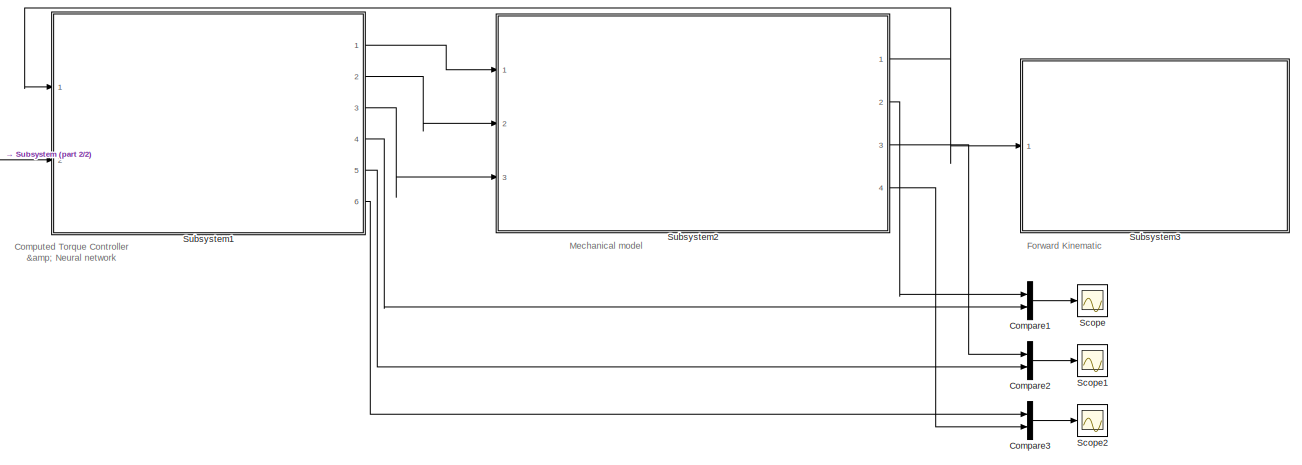
[diagram: root canvas - part 1/2, center side, full height]
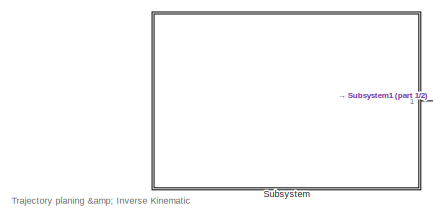
[diagram: root canvas - part 2/2, middle left region]
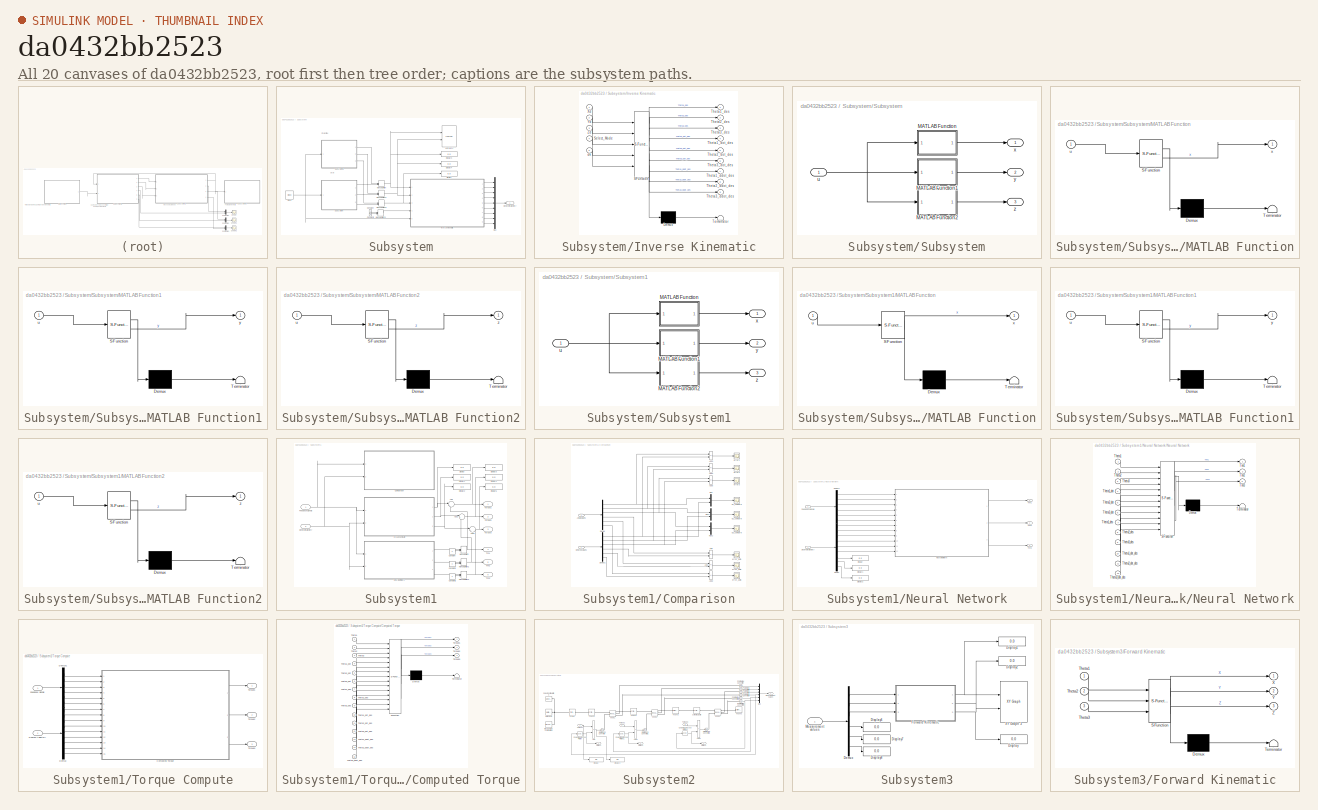
[diagram: thumbnail index - all 20 canvases of the model, root first then tree order]
MODEL slx_da0432bb2523
KIND model
CONFIG AbsTol = 1e-3
CONFIG EnableMultiTasking = on
CONFIG FixedStep = auto
CONFIG MaxStep = auto
CONFIG MinStep = auto
CONFIG RelTol = 1e-3
CONFIG SampleTimeConstraint = Unconstrained
CONFIG SolverName = VariableStepAuto
CONFIG StartTime = 0.0
CONFIG StopTime = 60
BLOCK [Mux] Compare1
  DisplayOption = bar
  Inputs = 2
  Ports = [2, 1]
BLOCK [Mux] Compare2
  DisplayOption = bar
  Inputs = 2
  Ports = [2, 1]
BLOCK [Mux] Compare3
  DisplayOption = bar
  Inputs = 2
  Ports = [2, 1]
BLOCK [Scope] Scope
  Floating = off
  NumInputPorts = 1
  Ports = [1]
  ScopeSpecificationString = Simulink.scopes.TimeScopeBlockCfg('CurrentConfiguration', extmgr.ConfigurationSet(extmgr.Configuration('Core','General UI',true),extmgr.Configuration('Core','Source UI',true),extmgr.Configuration('Sources','WiredSimulink',true,'DataLoggingVariableName','ScopeData1'),extmgr.Configuration('Visuals','Time Domain',true,'SerializedDisplays',{struct('MinYLimReal','-3750000.00000','MaxYLimReal','3750000....<+1867ch>
BLOCK [Scope] Scope1
  Floating = off
  NumInputPorts = 1
  Ports = [1]
  ScopeSpecificationString = Simulink.scopes.TimeScopeBlockCfg('CurrentConfiguration', extmgr.ConfigurationSet(extmgr.Configuration('Core','General UI',true),extmgr.Configuration('Core','Source UI',true),extmgr.Configuration('Sources','WiredSimulink',true,'DataLoggingVariableName','ScopeData2'),extmgr.Configuration('Visuals','Time Domain',true,'SerializedDisplays',{struct('MinYLimReal','-3750000.00000','MaxYLimReal','3750000....<+1505ch>
BLOCK [Scope] Scope2
  Floating = off
  NumInputPorts = 1
  Ports = [1]
  ScopeSpecificationString = Simulink.scopes.TimeScopeBlockCfg('CurrentConfiguration', extmgr.ConfigurationSet(extmgr.Configuration('Core','General UI',true),extmgr.Configuration('Core','Source UI',true),extmgr.Configuration('Sources','WiredSimulink',true,'DataLoggingVariableName','ScopeData3'),extmgr.Configuration('Visuals','Time Domain',true,'SerializedDisplays',{struct('MinYLimReal','-3750000.00000','MaxYLimReal','3750000....<+1505ch>
BLOCK [SubSystem] Subsystem
  Ports = [0, 1]
  RequestExecContextInheritance = off
BLOCK [Clock] Subsystem/Clock
BLOCK [Constant] Subsystem/Constant
BLOCK [Constant] Subsystem/Constant1
  Value = 2
BLOCK [Outport] Subsystem/Desired trajectory 
BLOCK [Display] Subsystem/Display
  Decimation = 1
  Ports = [1]
BLOCK [Display] Subsystem/Display3
  Decimation = 1
  Ports = [1]
BLOCK [Display] Subsystem/Display4
  Decimation = 1
  Ports = [1]
BLOCK [SubSystem] Subsystem/Inverse Kinematic
  ErrorFcn = Stateflow.Translate.translate
  PermitHierarchicalResolution = ExplicitOnly
  Ports = [5, 9]
  RequestExecContextInheritance = off
  SFBlockType = MATLAB Function
  TreatAsAtomicUnit = on
BLOCK [Demux] Subsystem/Inverse Kinematic/ Demux 
  Outputs = 1
  Ports = [1, 1]
BLOCK [S-Function] Subsystem/Inverse Kinematic/ SFunction 
  EnableBusSupport = on
  FunctionName = sf_sfun
  PortCounts = [5 10]
  Ports = [5, 10]
  SFcnIsStateOwnerBlock = off
  SFunctionDeploymentMode = off
  Tag = Stateflow S-Function 2
BLOCK [Terminator] Subsystem/Inverse Kinematic/ Terminator 
BLOCK [Inport] Subsystem/Inverse Kinematic/Select_Mode
  Port = 4
BLOCK [Outport] Subsystem/Inverse Kinematic/Theta1_ddot_des
  Port = 7
BLOCK [Outport] Subsystem/Inverse Kinematic/Theta1_des
BLOCK [Outport] Subsystem/Inverse Kinematic/Theta1_dot_des
  Port = 4
BLOCK [Outport] Subsystem/Inverse Kinematic/Theta2_ddot_des
  Port = 8
BLOCK [Outport] Subsystem/Inverse Kinematic/Theta2_des
  Port = 2
BLOCK [Outport] Subsystem/Inverse Kinematic/Theta2_dot_des
  Port = 5
BLOCK [Outport] Subsystem/Inverse Kinematic/Theta3_ddot_des
  Port = 9
BLOCK [Outport] Subsystem/Inverse Kinematic/Theta3_des
  Port = 3
BLOCK [Outport] Subsystem/Inverse Kinematic/Theta3_dot_des
  Port = 6
BLOCK [Inport] Subsystem/Inverse Kinematic/Xd
BLOCK [Inport] Subsystem/Inverse Kinematic/Yd
  Port = 2
BLOCK [Inport] Subsystem/Inverse Kinematic/Zd
  Port = 3
BLOCK [Inport] Subsystem/Inverse Kinematic/clk
  Port = 5
BLOCK [ManualSwitch] Subsystem/Manual Switch
  CurrentSetting = 0
BLOCK [ManualSwitch] Subsystem/Manual Switch1
  CurrentSetting = 0
BLOCK [ManualSwitch] Subsystem/Manual Switch2
  CurrentSetting = 0
BLOCK [ManualSwitch] Subsystem/Manual Switch3
  CurrentSetting = 0
BLOCK [Mux] Subsystem/Mux
  DisplayOption = bar
  Inputs = 9
  Ports = [9, 1]
BLOCK [SubSystem] Subsystem/Subsystem
  Ports = [1, 3]
  RequestExecContextInheritance = off
BLOCK [SubSystem] Subsystem/Subsystem/MATLAB Function
  ErrorFcn = Stateflow.Translate.translate
  PermitHierarchicalResolution = ExplicitOnly
  Ports = [1, 1]
  RequestExecContextInheritance = off
  SFBlockType = MATLAB Function
  TreatAsAtomicUnit = on
BLOCK [Demux] Subsystem/Subsystem/MATLAB Function/ Demux 
  Outputs = 1
  Ports = [1, 1]
BLOCK [S-Function] Subsystem/Subsystem/MATLAB Function/ SFunction 
  EnableBusSupport = on
  FunctionName = sf_sfun
  PortCounts = [1 2]
  Ports = [1, 2]
  SFcnIsStateOwnerBlock = off
  SFunctionDeploymentMode = off
  Tag = Stateflow S-Function 3
BLOCK [Terminator] Subsystem/Subsystem/MATLAB Function/ Terminator 
BLOCK [Inport] Subsystem/Subsystem/MATLAB Function/u
BLOCK [Outport] Subsystem/Subsystem/MATLAB Function/x
BLOCK [SubSystem] Subsystem/Subsystem/MATLAB Function1
  ErrorFcn = Stateflow.Translate.translate
  PermitHierarchicalResolution = ExplicitOnly
  Ports = [1, 1]
  RequestExecContextInheritance = off
  SFBlockType = MATLAB Function
  TreatAsAtomicUnit = on
BLOCK [Demux] Subsystem/Subsystem/MATLAB Function1/ Demux 
  Outputs = 1
  Ports = [1, 1]
BLOCK [S-Function] Subsystem/Subsystem/MATLAB Function1/ SFunction 
  EnableBusSupport = on
  FunctionName = sf_sfun
  PortCounts = [1 2]
  Ports = [1, 2]
  SFcnIsStateOwnerBlock = off
  SFunctionDeploymentMode = off
  Tag = Stateflow S-Function 4
BLOCK [Terminator] Subsystem/Subsystem/MATLAB Function1/ Terminator 
BLOCK [Inport] Subsystem/Subsystem/MATLAB Function1/u
BLOCK [Outport] Subsystem/Subsystem/MATLAB Function1/y
BLOCK [SubSystem] Subsystem/Subsystem/MATLAB Function2
  ErrorFcn = Stateflow.Translate.translate
  PermitHierarchicalResolution = ExplicitOnly
  Ports = [1, 1]
  RequestExecContextInheritance = off
  SFBlockType = MATLAB Function
  TreatAsAtomicUnit = on
BLOCK [Demux] Subsystem/Subsystem/MATLAB Function2/ Demux 
  Outputs = 1
  Ports = [1, 1]
BLOCK [S-Function] Subsystem/Subsystem/MATLAB Function2/ SFunction 
  EnableBusSupport = on
  FunctionName = sf_sfun
  PortCounts = [1 2]
  Ports = [1, 2]
  SFcnIsStateOwnerBlock = off
  SFunctionDeploymentMode = off
  Tag = Stateflow S-Function 6
BLOCK [Terminator] Subsystem/Subsystem/MATLAB Function2/ Terminator 
BLOCK [Inport] Subsystem/Subsystem/MATLAB Function2/u
BLOCK [Outport] Subsystem/Subsystem/MATLAB Function2/z
BLOCK [Inport] Subsystem/Subsystem/u
BLOCK [Outport] Subsystem/Subsystem/x
BLOCK [Outport] Subsystem/Subsystem/y
  Port = 2
BLOCK [Outport] Subsystem/Subsystem/z
  Port = 3
BLOCK [SubSystem] Subsystem/Subsystem1
  Ports = [1, 3]
  RequestExecContextInheritance = off
BLOCK [SubSystem] Subsystem/Subsystem1/MATLAB Function
  ErrorFcn = Stateflow.Translate.translate
  PermitHierarchicalResolution = ExplicitOnly
  Ports = [1, 1]
  RequestExecContextInheritance = off
  SFBlockType = MATLAB Function
  TreatAsAtomicUnit = on
BLOCK [Demux] Subsystem/Subsystem1/MATLAB Function/ Demux 
  Outputs = 1
  Ports = [1, 1]
BLOCK [S-Function] Subsystem/Subsystem1/MATLAB Function/ SFunction 
  EnableBusSupport = on
  FunctionName = sf_sfun
  PortCounts = [1 2]
  Ports = [1, 2]
  SFcnIsStateOwnerBlock = off
  SFunctionDeploymentMode = off
  Tag = Stateflow S-Function 8
BLOCK [Terminator] Subsystem/Subsystem1/MATLAB Function/ Terminator 
BLOCK [Inport] Subsystem/Subsystem1/MATLAB Function/u
BLOCK [Outport] Subsystem/Subsystem1/MATLAB Function/x
BLOCK [SubSystem] Subsystem/Subsystem1/MATLAB Function1
  ErrorFcn = Stateflow.Translate.translate
  PermitHierarchicalResolution = ExplicitOnly
  Ports = [1, 1]
  RequestExecContextInheritance = off
  SFBlockType = MATLAB Function
  TreatAsAtomicUnit = on
BLOCK [Demux] Subsystem/Subsystem1/MATLAB Function1/ Demux 
  Outputs = 1
  Ports = [1, 1]
BLOCK [S-Function] Subsystem/Subsystem1/MATLAB Function1/ SFunction 
  EnableBusSupport = on
  FunctionName = sf_sfun
  PortCounts = [1 2]
  Ports = [1, 2]
  SFcnIsStateOwnerBlock = off
  SFunctionDeploymentMode = off
  Tag = Stateflow S-Function 9
BLOCK [Terminator] Subsystem/Subsystem1/MATLAB Function1/ Terminator 
BLOCK [Inport] Subsystem/Subsystem1/MATLAB Function1/u
BLOCK [Outport] Subsystem/Subsystem1/MATLAB Function1/y
BLOCK [SubSystem] Subsystem/Subsystem1/MATLAB Function2
  ErrorFcn = Stateflow.Translate.translate
  PermitHierarchicalResolution = ExplicitOnly
  Ports = [1, 1]
  RequestExecContextInheritance = off
  SFBlockType = MATLAB Function
  TreatAsAtomicUnit = on
BLOCK [Demux] Subsystem/Subsystem1/MATLAB Function2/ Demux 
  Outputs = 1
  Ports = [1, 1]
BLOCK [S-Function] Subsystem/Subsystem1/MATLAB Function2/ SFunction 
  EnableBusSupport = on
  FunctionName = sf_sfun
  PortCounts = [1 2]
  Ports = [1, 2]
  SFcnIsStateOwnerBlock = off
  SFunctionDeploymentMode = off
  Tag = Stateflow S-Function 10
BLOCK [Terminator] Subsystem/Subsystem1/MATLAB Function2/ Terminator 
BLOCK [Inport] Subsystem/Subsystem1/MATLAB Function2/u
BLOCK [Outport] Subsystem/Subsystem1/MATLAB Function2/z
BLOCK [Inport] Subsystem/Subsystem1/u
BLOCK [Outport] Subsystem/Subsystem1/x
BLOCK [Outport] Subsystem/Subsystem1/y
  Port = 2
BLOCK [Outport] Subsystem/Subsystem1/z
  Port = 3
BLOCK [Reference] Subsystem/XY Graph1  REF=simulink/Sinks/XY Graph
  Ports = [2]
  SourceBlock = simulink/Sinks/XY Graph
  SourceProductBaseCode = SL
  SourceType = XY scope.
BLOCK [SubSystem] Subsystem1
  Ports = [2, 6]
  RequestExecContextInheritance = off
BLOCK [Sum] Subsystem1/Add
  Inputs = |++
  Ports = [2, 1]
BLOCK [Sum] Subsystem1/Add1
  Inputs = |++
  Ports = [2, 1]
BLOCK [Sum] Subsystem1/Add2
  Inputs = |++
  Ports = [2, 1]
BLOCK [SubSystem] Subsystem1/Comparison
  Ports = [2]
  RequestExecContextInheritance = off
BLOCK [Inport] Subsystem1/Comparison/Actual values
BLOCK [Sum] Subsystem1/Comparison/Add
  IconShape = rectangular
  Inputs = +-
  Ports = [2, 1]
BLOCK [Sum] Subsystem1/Comparison/Add1
  IconShape = rectangular
  Inputs = +-
  Ports = [2, 1]
BLOCK [Sum] Subsystem1/Comparison/Add2
  IconShape = rectangular
  Inputs = +-
  Ports = [2, 1]
BLOCK [Sum] Subsystem1/Comparison/Add3
  IconShape = rectangular
  Inputs = +-
  Ports = [2, 1]
BLOCK [Sum] Subsystem1/Comparison/Add4
  IconShape = rectangular
  Inputs = +-
  Ports = [2, 1]
BLOCK [Sum] Subsystem1/Comparison/Add5
  IconShape = rectangular
  Inputs = +-
  Ports = [2, 1]
BLOCK [Demux] Subsystem1/Comparison/Demux
  Outputs = 6
  Ports = [1, 6]
BLOCK [Demux] Subsystem1/Comparison/Demux1
  Outputs = 6
  Ports = [1, 6]
BLOCK [Inport] Subsystem1/Comparison/Desired values
  Port = 2
BLOCK [Mux] Subsystem1/Comparison/Mux
  DisplayOption = bar
  Inputs = 2
  Ports = [2, 1]
BLOCK [Mux] Subsystem1/Comparison/Mux1
  DisplayOption = bar
  Inputs = 2
  Ports = [2, 1]
BLOCK [Mux] Subsystem1/Comparison/Mux2
  DisplayOption = bar
  Inputs = 2
  Ports = [2, 1]
BLOCK [Scope] Subsystem1/Comparison/error 1
  Floating = off
  NumInputPorts = 1
  Ports = [1]
  ScopeSpecificationString = Simulink.scopes.TimeScopeBlockCfg('CurrentConfiguration', extmgr.ConfigurationSet(extmgr.Configuration('Core','General UI',true),extmgr.Configuration('Core','Source UI',true),extmgr.Configuration('Sources','WiredSimulink',true,'DataLoggingVariableName','ScopeData3'),extmgr.Configuration('Visuals','Time Domain',true),extmgr.Configuration('Tools','Plot Navigation',true),extmgr.Configuration('Tools',...<+40ch>
BLOCK [Scope] Subsystem1/Comparison/error 2
  Floating = off
  NumInputPorts = 1
  Ports = [1]
  ScopeSpecificationString = Simulink.scopes.TimeScopeBlockCfg('CurrentConfiguration', extmgr.ConfigurationSet(extmgr.Configuration('Core','General UI',true),extmgr.Configuration('Core','Source UI',true),extmgr.Configuration('Sources','WiredSimulink',true,'DataLoggingVariableName','ScopeData4'),extmgr.Configuration('Visuals','Time Domain',true),extmgr.Configuration('Tools','Plot Navigation',true),extmgr.Configuration('Tools',...<+40ch>
BLOCK [Scope] Subsystem1/Comparison/error 3
  Floating = off
  NumInputPorts = 1
  Ports = [1]
  ScopeSpecificationString = Simulink.scopes.TimeScopeBlockCfg('CurrentConfiguration', extmgr.ConfigurationSet(extmgr.Configuration('Core','General UI',true),extmgr.Configuration('Core','Source UI',true),extmgr.Configuration('Sources','WiredSimulink',true,'DataLoggingVariableName','ScopeData5'),extmgr.Configuration('Visuals','Time Domain',true),extmgr.Configuration('Tools','Plot Navigation',true),extmgr.Configuration('Tools',...<+40ch>
BLOCK [Scope] Subsystem1/Comparison/error_dot 1
  Floating = off
  NumInputPorts = 1
  Ports = [1]
  ScopeSpecificationString = Simulink.scopes.TimeScopeBlockCfg('CurrentConfiguration', extmgr.ConfigurationSet(extmgr.Configuration('Core','General UI',true),extmgr.Configuration('Core','Source UI',true),extmgr.Configuration('Sources','WiredSimulink',true,'DataLoggingVariableName','ScopeData6'),extmgr.Configuration('Visuals','Time Domain',true),extmgr.Configuration('Tools','Plot Navigation',true),extmgr.Configuration('Tools',...<+40ch>
BLOCK [Scope] Subsystem1/Comparison/error_dot 2
  Floating = off
  NumInputPorts = 1
  Ports = [1]
  ScopeSpecificationString = Simulink.scopes.TimeScopeBlockCfg('CurrentConfiguration', extmgr.ConfigurationSet(extmgr.Configuration('Core','General UI',true),extmgr.Configuration('Core','Source UI',true),extmgr.Configuration('Sources','WiredSimulink',true,'DataLoggingVariableName','ScopeData7'),extmgr.Configuration('Visuals','Time Domain',true),extmgr.Configuration('Tools','Plot Navigation',true),extmgr.Configuration('Tools',...<+40ch>
BLOCK [Scope] Subsystem1/Comparison/error_dot 3
  Floating = off
  NumInputPorts = 1
  Ports = [1]
  ScopeSpecificationString = Simulink.scopes.TimeScopeBlockCfg('CurrentConfiguration', extmgr.ConfigurationSet(extmgr.Configuration('Core','General UI',true),extmgr.Configuration('Core','Source UI',true),extmgr.Configuration('Sources','WiredSimulink',true,'DataLoggingVariableName','ScopeData8'),extmgr.Configuration('Visuals','Time Domain',true),extmgr.Configuration('Tools','Plot Navigation',true),extmgr.Configuration('Tools',...<+40ch>
BLOCK [Scope] Subsystem1/Comparison/q1_compare
  Floating = off
  NumInputPorts = 1
  Ports = [1]
  ScopeSpecificationString = Simulink.scopes.TimeScopeBlockCfg('CurrentConfiguration', extmgr.ConfigurationSet(extmgr.Configuration('Core','General UI',true),extmgr.Configuration('Core','Source UI',true),extmgr.Configuration('Sources','WiredSimulink',true),extmgr.Configuration('Visuals','Time Domain',true),extmgr.Configuration('Tools','Plot Navigation',true),extmgr.Configuration('Tools','Measurements',true)),'Version','2021a'...<+1ch>
BLOCK [Scope] Subsystem1/Comparison/q2_compare
  Floating = off
  NumInputPorts = 1
  Ports = [1]
  ScopeSpecificationString = Simulink.scopes.TimeScopeBlockCfg('CurrentConfiguration', extmgr.ConfigurationSet(extmgr.Configuration('Core','General UI',true),extmgr.Configuration('Core','Source UI',true),extmgr.Configuration('Sources','WiredSimulink',true,'DataLoggingVariableName','ScopeData1'),extmgr.Configuration('Visuals','Time Domain',true),extmgr.Configuration('Tools','Plot Navigation',true),extmgr.Configuration('Tools',...<+40ch>
BLOCK [Scope] Subsystem1/Comparison/q3_compare
  Floating = off
  NumInputPorts = 1
  Ports = [1]
  ScopeSpecificationString = Simulink.scopes.TimeScopeBlockCfg('CurrentConfiguration', extmgr.ConfigurationSet(extmgr.Configuration('Core','General UI',true),extmgr.Configuration('Core','Source UI',true),extmgr.Configuration('Sources','WiredSimulink',true,'DataLoggingVariableName','ScopeData2'),extmgr.Configuration('Visuals','Time Domain',true),extmgr.Configuration('Tools','Plot Navigation',true),extmgr.Configuration('Tools',...<+40ch>
BLOCK [Constant] Subsystem1/Constant
  Value = 0
BLOCK [Constant] Subsystem1/Constant1
  Value = 0
BLOCK [Constant] Subsystem1/Constant2
  Value = 0
BLOCK [Inport] Subsystem1/Desired trajectory
  Port = 2
BLOCK [Display] Subsystem1/Display
  Decimation = 1
  Ports = [1]
BLOCK [Display] Subsystem1/Display1
  Decimation = 1
  Ports = [1]
BLOCK [Display] Subsystem1/Display2
  Decimation = 1
  Ports = [1]
BLOCK [Display] Subsystem1/Display3
  Decimation = 1
  Ports = [1]
BLOCK [Display] Subsystem1/Display4
  Decimation = 1
  Ports = [1]
BLOCK [Display] Subsystem1/Display5
  Decimation = 1
  Ports = [1]
BLOCK [Inport] Subsystem1/Feedback signals
BLOCK [ManualSwitch] Subsystem1/Manual Switch
BLOCK [ManualSwitch] Subsystem1/Manual Switch1
BLOCK [ManualSwitch] Subsystem1/Manual Switch2
BLOCK [SubSystem] Subsystem1/Neural Network
  Ports = [2, 3]
  RequestExecContextInheritance = off
BLOCK [Demux] Subsystem1/Neural Network/Demux
  Outputs = 9
  Ports = [1, 9]
BLOCK [Demux] Subsystem1/Neural Network/Demux1
  Outputs = 6
  Ports = [1, 6]
BLOCK [Inport] Subsystem1/Neural Network/Desired trajectory
  Port = 2
BLOCK [Display] Subsystem1/Neural Network/Display
  Decimation = 1
  Ports = [1]
BLOCK [Display] Subsystem1/Neural Network/Display1
  Decimation = 1
  Ports = [1]
BLOCK [Display] Subsystem1/Neural Network/Display2
  Decimation = 1
  Ports = [1]
BLOCK [Inport] Subsystem1/Neural Network/Feedback signals
BLOCK [SubSystem] Subsystem1/Neural Network/Neural Network
  ErrorFcn = Stateflow.Translate.translate
  PermitHierarchicalResolution = ExplicitOnly
  Ports = [12, 3]
  RequestExecContextInheritance = off
  SFBlockType = MATLAB Function
  SystemSampleTime = 0.001
  TreatAsAtomicUnit = on
BLOCK [Demux] Subsystem1/Neural Network/Neural Network/ Demux 
  Outputs = 1
  Ports = [1, 1]
BLOCK [S-Function] Subsystem1/Neural Network/Neural Network/ SFunction 
  EnableBusSupport = on
  FunctionName = sf_sfun
  PortCounts = [12 4]
  Ports = [12, 4]
  SFcnIsStateOwnerBlock = off
  SFunctionDeploymentMode = off
  Tag = Stateflow S-Function 7
BLOCK [Terminator] Subsystem1/Neural Network/Neural Network/ Terminator 
BLOCK [Inport] Subsystem1/Neural Network/Neural Network/Theta1
BLOCK [Inport] Subsystem1/Neural Network/Neural Network/Theta1_des
  Port = 7
BLOCK [Inport] Subsystem1/Neural Network/Neural Network/Theta1_dot
  Port = 4
BLOCK [Inport] Subsystem1/Neural Network/Neural Network/Theta1_dot_des
  Port = 10
BLOCK [Inport] Subsystem1/Neural Network/Neural Network/Theta2
  Port = 2
BLOCK [Inport] Subsystem1/Neural Network/Neural Network/Theta2_des
  Port = 8
BLOCK [Inport] Subsystem1/Neural Network/Neural Network/Theta2_dot
  Port = 5
BLOCK [Inport] Subsystem1/Neural Network/Neural Network/Theta2_dot_des
  Port = 11
BLOCK [Inport] Subsystem1/Neural Network/Neural Network/Theta3
  Port = 3
BLOCK [Inport] Subsystem1/Neural Network/Neural Network/Theta3_des
  Port = 9
BLOCK [Inport] Subsystem1/Neural Network/Neural Network/Theta3_dot
  Port = 6
BLOCK [Inport] Subsystem1/Neural Network/Neural Network/Theta3_dot_des
  Port = 12
BLOCK [Outport] Subsystem1/Neural Network/Neural Network/Tnn1
BLOCK [Outport] Subsystem1/Neural Network/Neural Network/Tnn2
  Port = 2
BLOCK [Outport] Subsystem1/Neural Network/Neural Network/Tnn3
  Port = 3
BLOCK [Outport] Subsystem1/Neural Network/Tnn1
BLOCK [Outport] Subsystem1/Neural Network/Tnn2
  Port = 2
BLOCK [Outport] Subsystem1/Neural Network/Tnn3
  Port = 3
BLOCK [Outport] Subsystem1/Tnn1
  Port = 4
BLOCK [Outport] Subsystem1/Tnn2
  Port = 5
BLOCK [Outport] Subsystem1/Tnn3
  Port = 6
BLOCK [SubSystem] Subsystem1/Torque Compute
  Ports = [2, 3]
  RequestExecContextInheritance = off
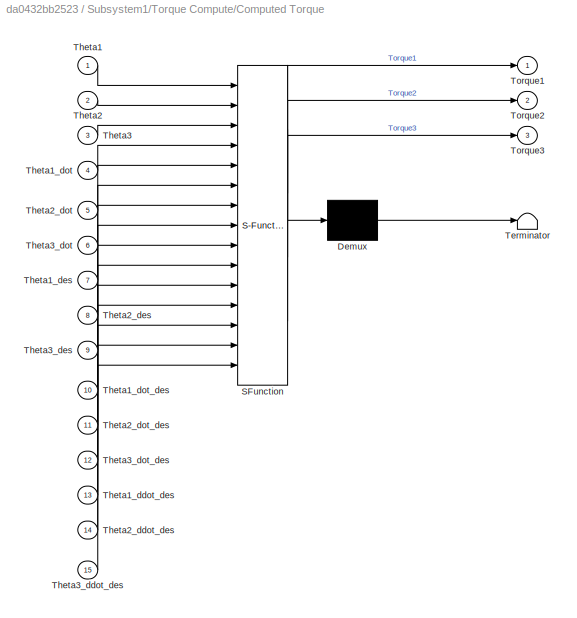
BLOCK [SubSystem] Subsystem1/Torque Compute/Computed Torque
  ErrorFcn = Stateflow.Translate.translate
  PermitHierarchicalResolution = ExplicitOnly
  Ports = [15, 3]
  RequestExecContextInheritance = off
  SFBlockType = MATLAB Function
  TreatAsAtomicUnit = on
BLOCK [Demux] Subsystem1/Torque Compute/Computed Torque/ Demux 
  Outputs = 1
  Ports = [1, 1]
BLOCK [S-Function] Subsystem1/Torque Compute/Computed Torque/ SFunction 
  EnableBusSupport = on
  FunctionName = sf_sfun
  PortCounts = [15 4]
  Ports = [15, 4]
  SFcnIsStateOwnerBlock = off
  SFunctionDeploymentMode = off
  Tag = Stateflow S-Function 5
BLOCK [Terminator] Subsystem1/Torque Compute/Computed Torque/ Terminator 
BLOCK [Inport] Subsystem1/Torque Compute/Computed Torque/Theta1
BLOCK [Inport] Subsystem1/Torque Compute/Computed Torque/Theta1_ddot_des
  Port = 13
BLOCK [Inport] Subsystem1/Torque Compute/Computed Torque/Theta1_des
  Port = 7
BLOCK [Inport] Subsystem1/Torque Compute/Computed Torque/Theta1_dot
  Port = 4
BLOCK [Inport] Subsystem1/Torque Compute/Computed Torque/Theta1_dot_des
  Port = 10
BLOCK [Inport] Subsystem1/Torque Compute/Computed Torque/Theta2
  Port = 2
BLOCK [Inport] Subsystem1/Torque Compute/Computed Torque/Theta2_ddot_des
  Port = 14
BLOCK [Inport] Subsystem1/Torque Compute/Computed Torque/Theta2_des
  Port = 8
BLOCK [Inport] Subsystem1/Torque Compute/Computed Torque/Theta2_dot
  Port = 5
BLOCK [Inport] Subsystem1/Torque Compute/Computed Torque/Theta2_dot_des
  Port = 11
BLOCK [Inport] Subsystem1/Torque Compute/Computed Torque/Theta3
  Port = 3
BLOCK [Inport] Subsystem1/Torque Compute/Computed Torque/Theta3_ddot_des
  Port = 15
BLOCK [Inport] Subsystem1/Torque Compute/Computed Torque/Theta3_des
  Port = 9
BLOCK [Inport] Subsystem1/Torque Compute/Computed Torque/Theta3_dot
  Port = 6
BLOCK [Inport] Subsystem1/Torque Compute/Computed Torque/Theta3_dot_des
  Port = 12
BLOCK [Outport] Subsystem1/Torque Compute/Computed Torque/Torque1
BLOCK [Outport] Subsystem1/Torque Compute/Computed Torque/Torque2
  Port = 2
BLOCK [Outport] Subsystem1/Torque Compute/Computed Torque/Torque3
  Port = 3
BLOCK [Demux] Subsystem1/Torque Compute/Demux
  Outputs = 9
  Ports = [1, 9]
BLOCK [Demux] Subsystem1/Torque Compute/Demux1
  Outputs = 6
  Ports = [1, 6]
BLOCK [Inport] Subsystem1/Torque Compute/Desired trajectory
  Port = 2
BLOCK [Inport] Subsystem1/Torque Compute/Feedback signals
BLOCK [Outport] Subsystem1/Torque Compute/Torque1
BLOCK [Outport] Subsystem1/Torque Compute/Torque2
  Port = 2
BLOCK [Outport] Subsystem1/Torque Compute/Torque3
  Port = 3
BLOCK [Outport] Subsystem1/Torque1
BLOCK [Outport] Subsystem1/Torque2
  Port = 2
BLOCK [Outport] Subsystem1/Torque3
  Port = 3
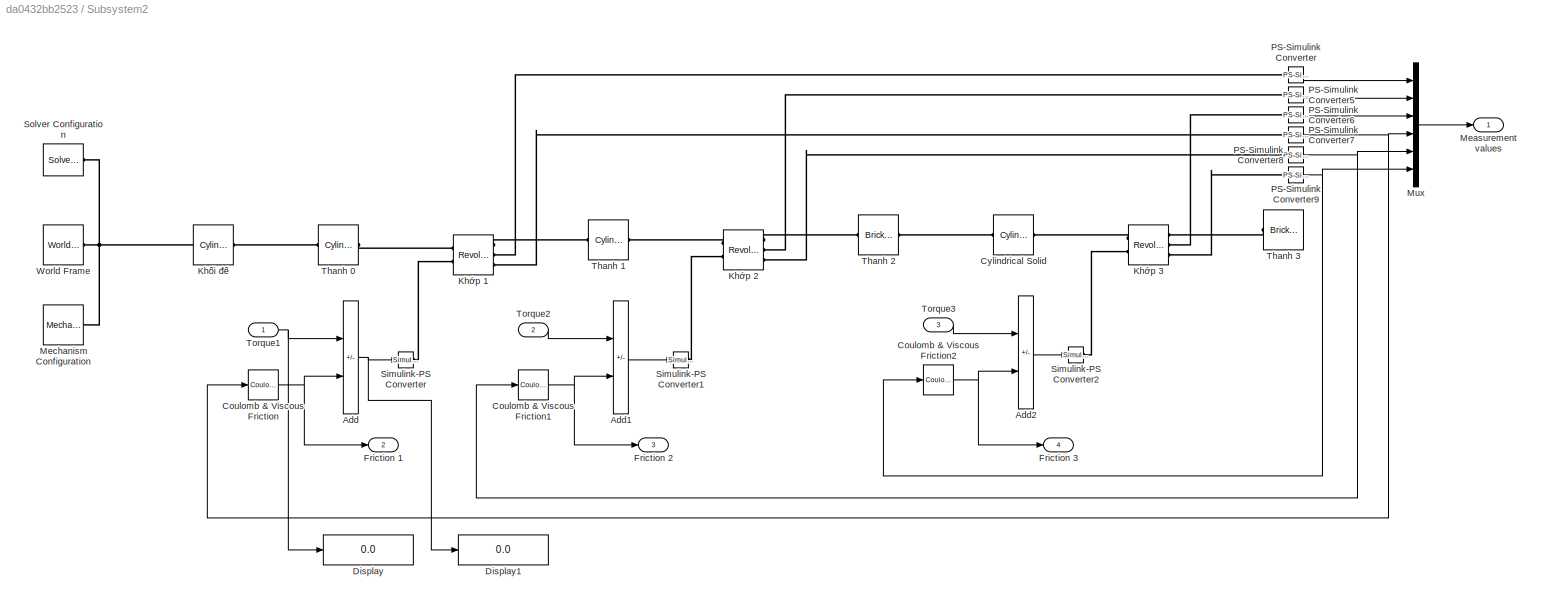
BLOCK [SubSystem] Subsystem2
  Ports = [3, 4]
  RequestExecContextInheritance = off
BLOCK [Sum] Subsystem2/Add
  IconShape = rectangular
  Inputs = +-
  Ports = [2, 1]
BLOCK [Sum] Subsystem2/Add1
  IconShape = rectangular
  Inputs = +-
  Ports = [2, 1]
BLOCK [Sum] Subsystem2/Add2
  IconShape = rectangular
  Inputs = +-
  Ports = [2, 1]
BLOCK [Reference] Subsystem2/Coulomb & Viscous Friction  REF=simulink/Discontinuities/Coulomb &
Viscous Friction
  Ports = [1, 1]
  SourceBlock = simulink/Discontinuities/Coulomb &\nViscous Friction
  SourceProductBaseCode = SL
  SourceType = Coulombic and Viscous Friction
BLOCK [Reference] Subsystem2/Coulomb & Viscous Friction1  REF=simulink/Discontinuities/Coulomb &
Viscous Friction
  Ports = [1, 1]
  SourceBlock = simulink/Discontinuities/Coulomb &\nViscous Friction
  SourceProductBaseCode = SL
  SourceType = Coulombic and Viscous Friction
BLOCK [Reference] Subsystem2/Coulomb & Viscous Friction2  REF=simulink/Discontinuities/Coulomb &
Viscous Friction
  Ports = [1, 1]
  SourceBlock = simulink/Discontinuities/Coulomb &\nViscous Friction
  SourceProductBaseCode = SL
  SourceType = Coulombic and Viscous Friction
BLOCK [Reference] Subsystem2/Cylindrical Solid  REF=sm_lib/Body Elements/Cylindrical Solid
  Ports = [0, 0, 0, 0, 0, 1, 1]
  SourceBlock = sm_lib/Body Elements/Cylindrical Solid
  SourceProductBaseCode = MS
  SourceType = Cylindrical Solid
BLOCK [Display] Subsystem2/Display
  Decimation = 1
  Ports = [1]
BLOCK [Display] Subsystem2/Display1
  Decimation = 1
  Ports = [1]
BLOCK [Outport] Subsystem2/Friction 1
  Port = 2
BLOCK [Outport] Subsystem2/Friction 2
  Port = 3
BLOCK [Outport] Subsystem2/Friction 3
  Port = 4
BLOCK [Reference] Subsystem2/Khối đế  REF=sm_lib/Body Elements/Cylindrical Solid
  NameLocation = top
  Ports = [0, 0, 0, 0, 0, 1, 1]
  SourceBlock = sm_lib/Body Elements/Cylindrical Solid
  SourceProductBaseCode = MS
  SourceType = Cylindrical Solid
BLOCK [Reference] Subsystem2/Khớp 1  REF=sm_lib/Joints/Revolute Joint
  Ports = [0, 0, 0, 0, 0, 2, 3]
  SourceBlock = sm_lib/Joints/Revolute Joint
  SourceProductBaseCode = MS
  SourceType = Revolute Joint
BLOCK [Reference] Subsystem2/Khớp 2  REF=sm_lib/Joints/Revolute Joint
  Ports = [0, 0, 0, 0, 0, 2, 3]
  SourceBlock = sm_lib/Joints/Revolute Joint
  SourceProductBaseCode = MS
  SourceType = Revolute Joint
BLOCK [Reference] Subsystem2/Khớp 3  REF=sm_lib/Joints/Revolute Joint
  Ports = [0, 0, 0, 0, 0, 2, 3]
  SourceBlock = sm_lib/Joints/Revolute Joint
  SourceProductBaseCode = MS
  SourceType = Revolute Joint
BLOCK [Outport] Subsystem2/Measurement values
BLOCK [Reference] Subsystem2/Mechanism Configuration  REF=sm_lib/Utilities/Mechanism
Configuration
  Ports = [0, 0, 0, 0, 0, 0, 1]
  SourceBlock = sm_lib/Utilities/Mechanism\nConfiguration
  SourceProductBaseCode = MS
  SourceType = Mechanism\nConfiguration
BLOCK [Mux] Subsystem2/Mux
  DisplayOption = bar
  Inputs = 6
  Ports = [6, 1]
BLOCK [Reference] Subsystem2/PS-Simulink Converter  REF=nesl_utility/PS-Simulink
Converter
  Ports = [0, 1, 0, 0, 0, 1]
  SourceBlock = nesl_utility/PS-Simulink\nConverter
  SourceProductBaseCode = PW,SS
  SourceType = PS-Simulink\nConverter
BLOCK [Reference] Subsystem2/PS-Simulink Converter5  REF=nesl_utility/PS-Simulink
Converter
  Ports = [0, 1, 0, 0, 0, 1]
  SourceBlock = nesl_utility/PS-Simulink\nConverter
  SourceProductBaseCode = PW,SS
  SourceType = PS-Simulink\nConverter
BLOCK [Reference] Subsystem2/PS-Simulink Converter6  REF=nesl_utility/PS-Simulink
Converter
  Ports = [0, 1, 0, 0, 0, 1]
  SourceBlock = nesl_utility/PS-Simulink\nConverter
  SourceProductBaseCode = PW,SS
  SourceType = PS-Simulink\nConverter
BLOCK [Reference] Subsystem2/PS-Simulink Converter7  REF=nesl_utility/PS-Simulink
Converter
  Ports = [0, 1, 0, 0, 0, 1]
  SourceBlock = nesl_utility/PS-Simulink\nConverter
  SourceProductBaseCode = PW,SS
  SourceType = PS-Simulink\nConverter
BLOCK [Reference] Subsystem2/PS-Simulink Converter8  REF=nesl_utility/PS-Simulink
Converter
  Ports = [0, 1, 0, 0, 0, 1]
  SourceBlock = nesl_utility/PS-Simulink\nConverter
  SourceProductBaseCode = PW,SS
  SourceType = PS-Simulink\nConverter
BLOCK [Reference] Subsystem2/PS-Simulink Converter9  REF=nesl_utility/PS-Simulink
Converter
  Ports = [0, 1, 0, 0, 0, 1]
  SourceBlock = nesl_utility/PS-Simulink\nConverter
  SourceProductBaseCode = PW,SS
  SourceType = PS-Simulink\nConverter
BLOCK [Reference] Subsystem2/Simulink-PS Converter  REF=nesl_utility/Simulink-PS
Converter
  Ports = [1, 0, 0, 0, 0, 0, 1]
  SourceBlock = nesl_utility/Simulink-PS\nConverter
  SourceProductBaseCode = PW,SS
  SourceType = Simulink-PS\nConverter
BLOCK [Reference] Subsystem2/Simulink-PS Converter1  REF=nesl_utility/Simulink-PS
Converter
  Ports = [1, 0, 0, 0, 0, 0, 1]
  SourceBlock = nesl_utility/Simulink-PS\nConverter
  SourceProductBaseCode = PW,SS
  SourceType = Simulink-PS\nConverter
BLOCK [Reference] Subsystem2/Simulink-PS Converter2  REF=nesl_utility/Simulink-PS
Converter
  Ports = [1, 0, 0, 0, 0, 0, 1]
  SourceBlock = nesl_utility/Simulink-PS\nConverter
  SourceProductBaseCode = PW,SS
  SourceType = Simulink-PS\nConverter
BLOCK [Reference] Subsystem2/Solver Configuration  REF=nesl_utility/Solver
Configuration
  Ports = [0, 0, 0, 0, 0, 0, 1]
  SourceBlock = nesl_utility/Solver\nConfiguration
  SourceProductBaseCode = PW,SS
  SourceType = Solver\nConfiguration
BLOCK [Reference] Subsystem2/Thanh 0  REF=sm_lib/Body Elements/Cylindrical Solid
  Ports = [0, 0, 0, 0, 0, 1, 1]
  SourceBlock = sm_lib/Body Elements/Cylindrical Solid
  SourceProductBaseCode = MS
  SourceType = Cylindrical Solid
BLOCK [Reference] Subsystem2/Thanh 1  REF=sm_lib/Body Elements/Cylindrical Solid
  NameLocation = top
  Ports = [0, 0, 0, 0, 0, 1, 1]
  SourceBlock = sm_lib/Body Elements/Cylindrical Solid
  SourceProductBaseCode = MS
  SourceType = Cylindrical Solid
BLOCK [Reference] Subsystem2/Thanh 2  REF=sm_lib/Body Elements/Brick Solid
  NameLocation = top
  Ports = [0, 0, 0, 0, 0, 1, 1]
  SourceBlock = sm_lib/Body Elements/Brick Solid
  SourceProductBaseCode = MS
  SourceType = Brick Solid
BLOCK [Reference] Subsystem2/Thanh 3  REF=sm_lib/Body Elements/Brick Solid
  Ports = [0, 0, 0, 0, 0, 1, 1]
  SourceBlock = sm_lib/Body Elements/Brick Solid
  SourceProductBaseCode = MS
  SourceType = Brick Solid
BLOCK [Inport] Subsystem2/Torque1
BLOCK [Inport] Subsystem2/Torque2
  Port = 2
BLOCK [Inport] Subsystem2/Torque3
  Port = 3
BLOCK [Reference] Subsystem2/World Frame  REF=sm_lib/Frames and
Transforms/World Frame
  Ports = [0, 0, 0, 0, 0, 0, 1]
  SourceBlock = sm_lib/Frames and\nTransforms/World Frame
  SourceProductBaseCode = MS
  SourceType = World Frame
BLOCK [SubSystem] Subsystem3
  Ports = [1]
  RequestExecContextInheritance = off
BLOCK [Demux] Subsystem3/Demux
  Outputs = 6
  Ports = [1, 6]
BLOCK [Display] Subsystem3/Display
  Decimation = 1
  Ports = [1]
BLOCK [Display] Subsystem3/Display1
  Decimation = 1
  Ports = [1]
BLOCK [Display] Subsystem3/Display2
  Decimation = 1
  Ports = [1]
BLOCK [Display] Subsystem3/Display6
  Decimation = 1
  Ports = [1]
BLOCK [Display] Subsystem3/Display7
  Decimation = 1
  Ports = [1]
BLOCK [Display] Subsystem3/Display8
  Decimation = 1
  Ports = [1]
BLOCK [SubSystem] Subsystem3/Forward Kinematic
  ErrorFcn = Stateflow.Translate.translate
  PermitHierarchicalResolution = ExplicitOnly
  Ports = [3, 3]
  RequestExecContextInheritance = off
  SFBlockType = MATLAB Function
  TreatAsAtomicUnit = on
BLOCK [Demux] Subsystem3/Forward Kinematic/ Demux 
  Outputs = 1
  Ports = [1, 1]
BLOCK [S-Function] Subsystem3/Forward Kinematic/ SFunction 
  EnableBusSupport = on
  FunctionName = sf_sfun
  PortCounts = [3 4]
  Ports = [3, 4]
  SFcnIsStateOwnerBlock = off
  SFunctionDeploymentMode = off
  Tag = Stateflow S-Function 1
BLOCK [Terminator] Subsystem3/Forward Kinematic/ Terminator 
BLOCK [Inport] Subsystem3/Forward Kinematic/Theta1
BLOCK [Inport] Subsystem3/Forward Kinematic/Theta2
  Port = 2
BLOCK [Inport] Subsystem3/Forward Kinematic/Theta3
  Port = 3
BLOCK [Outport] Subsystem3/Forward Kinematic/X
BLOCK [Outport] Subsystem3/Forward Kinematic/Y
  Port = 2
BLOCK [Outport] Subsystem3/Forward Kinematic/Z
  Port = 3
BLOCK [Inport] Subsystem3/Measurement values
BLOCK [Reference] Subsystem3/XY Graph 3  REF=simulink/Sinks/XY Graph
  Ports = [2]
  SourceBlock = simulink/Sinks/XY Graph
  SourceProductBaseCode = SL
  SourceType = XY scope.
ANNOTATION (root): Computed Torque Controller & Neural network
ANNOTATION (root): Forward Kinematic
ANNOTATION (root): Mechanical model
ANNOTATION (root): Trajectory planing & Inverse Kinematic
ANNOTATION Subsystem: Circle
ANNOTATION Subsystem: Straight line
LINE Compare1:1 -> Scope:1
LINE Compare2:1 -> Scope1:1
LINE Compare3:1 -> Scope2:1
NET Subsystem/Clock:1 -> Subsystem/Inverse Kinematic:5, Subsystem/Subsystem1:1, Subsystem/Subsystem:1
LINE Subsystem/Constant1:1 -> Subsystem/Manual Switch3:2
LINE Subsystem/Constant:1 -> Subsystem/Manual Switch3:1
LINE Subsystem/Inverse Kinematic:1 -> Subsystem/Mux:1
LINE Subsystem/Inverse Kinematic:2 -> Subsystem/Mux:2
LINE Subsystem/Inverse Kinematic:3 -> Subsystem/Mux:3
LINE Subsystem/Inverse Kinematic:4 -> Subsystem/Mux:4
LINE Subsystem/Inverse Kinematic:5 -> Subsystem/Mux:5
LINE Subsystem/Inverse Kinematic:6 -> Subsystem/Mux:6
LINE Subsystem/Inverse Kinematic:7 -> Subsystem/Mux:7
LINE Subsystem/Inverse Kinematic:8 -> Subsystem/Mux:8
LINE Subsystem/Inverse Kinematic:9 -> Subsystem/Mux:9
NET Subsystem/Manual Switch1:1 -> Subsystem/Display4:1, Subsystem/Inverse Kinematic:2, Subsystem/XY Graph1:2
NET Subsystem/Manual Switch2:1 -> Subsystem/Display:1, Subsystem/Inverse Kinematic:3
LINE Subsystem/Manual Switch3:1 -> Subsystem/Inverse Kinematic:4
NET Subsystem/Manual Switch:1 -> Subsystem/Display3:1, Subsystem/Inverse Kinematic:1, Subsystem/XY Graph1:1
LINE Subsystem/Mux:1 -> Subsystem/Desired trajectory :1
LINE Subsystem/Subsystem/MATLAB Function1:1 -> Subsystem/Subsystem/y:1
LINE Subsystem/Subsystem/MATLAB Function2:1 -> Subsystem/Subsystem/z:1
LINE Subsystem/Subsystem/MATLAB Function:1 -> Subsystem/Subsystem/x:1
NET Subsystem/Subsystem/u:1 -> Subsystem/Subsystem/MATLAB Function1:1, Subsystem/Subsystem/MATLAB Function2:1, Subsystem/Subsystem/MATLAB Function:1
LINE Subsystem/Subsystem1/MATLAB Function1:1 -> Subsystem/Subsystem1/y:1
LINE Subsystem/Subsystem1/MATLAB Function2:1 -> Subsystem/Subsystem1/z:1
LINE Subsystem/Subsystem1/MATLAB Function:1 -> Subsystem/Subsystem1/x:1
NET Subsystem/Subsystem1/u:1 -> Subsystem/Subsystem1/MATLAB Function1:1, Subsystem/Subsystem1/MATLAB Function2:1, Subsystem/Subsystem1/MATLAB Function:1
LINE Subsystem/Subsystem1:1 -> Subsystem/Manual Switch:1
LINE Subsystem/Subsystem1:2 -> Subsystem/Manual Switch1:1
LINE Subsystem/Subsystem1:3 -> Subsystem/Manual Switch2:1
LINE Subsystem/Subsystem:1 -> Subsystem/Manual Switch:2
LINE Subsystem/Subsystem:2 -> Subsystem/Manual Switch1:2
LINE Subsystem/Subsystem:3 -> Subsystem/Manual Switch2:2
NET Subsystem1/Add1:1 -> Subsystem1/Display4:1, Subsystem1/Torque2:1
NET Subsystem1/Add2:1 -> Subsystem1/Display5:1, Subsystem1/Torque3:1
NET Subsystem1/Add:1 -> Subsystem1/Display3:1, Subsystem1/Torque1:1
LINE Subsystem1/Comparison/Actual values:1 -> Subsystem1/Comparison/Demux:1
LINE Subsystem1/Comparison/Add1:1 -> Subsystem1/Comparison/error_dot 2:1
LINE Subsystem1/Comparison/Add2:1 -> Subsystem1/Comparison/error_dot 3:1
LINE Subsystem1/Comparison/Add3:1 -> Subsystem1/Comparison/error 1:1
LINE Subsystem1/Comparison/Add4:1 -> Subsystem1/Comparison/error 2:1
LINE Subsystem1/Comparison/Add5:1 -> Subsystem1/Comparison/error 3:1
LINE Subsystem1/Comparison/Add:1 -> Subsystem1/Comparison/error_dot 1:1
NET Subsystem1/Comparison/Demux1:1 -> Subsystem1/Comparison/Add3:2, Subsystem1/Comparison/Mux:2
NET Subsystem1/Comparison/Demux1:2 -> Subsystem1/Comparison/Add4:2, Subsystem1/Comparison/Mux1:2
NET Subsystem1/Comparison/Demux1:3 -> Subsystem1/Comparison/Add5:2, Subsystem1/Comparison/Mux2:2
LINE Subsystem1/Comparison/Demux1:4 -> Subsystem1/Comparison/Add:2
LINE Subsystem1/Comparison/Demux1:5 -> Subsystem1/Comparison/Add1:2
LINE Subsystem1/Comparison/Demux1:6 -> Subsystem1/Comparison/Add2:2
NET Subsystem1/Comparison/Demux:1 -> Subsystem1/Comparison/Add3:1, Subsystem1/Comparison/Mux:1
NET Subsystem1/Comparison/Demux:2 -> Subsystem1/Comparison/Add4:1, Subsystem1/Comparison/Mux1:1
NET Subsystem1/Comparison/Demux:3 -> Subsystem1/Comparison/Add5:1, Subsystem1/Comparison/Mux2:1
LINE Subsystem1/Comparison/Demux:4 -> Subsystem1/Comparison/Add:1
LINE Subsystem1/Comparison/Demux:5 -> Subsystem1/Comparison/Add1:1
LINE Subsystem1/Comparison/Demux:6 -> Subsystem1/Comparison/Add2:1
LINE Subsystem1/Comparison/Desired values:1 -> Subsystem1/Comparison/Demux1:1
LINE Subsystem1/Comparison/Mux1:1 -> Subsystem1/Comparison/q2_compare:1
LINE Subsystem1/Comparison/Mux2:1 -> Subsystem1/Comparison/q3_compare:1
LINE Subsystem1/Comparison/Mux:1 -> Subsystem1/Comparison/q1_compare:1
LINE Subsystem1/Constant1:1 -> Subsystem1/Manual Switch1:2
LINE Subsystem1/Constant2:1 -> Subsystem1/Manual Switch2:2
LINE Subsystem1/Constant:1 -> Subsystem1/Manual Switch:2
NET Subsystem1/Desired trajectory:1 -> Subsystem1/Comparison:2, Subsystem1/Neural Network:2, Subsystem1/Torque Compute:2
NET Subsystem1/Feedback signals:1 -> Subsystem1/Comparison:1, Subsystem1/Neural Network:1, Subsystem1/Torque Compute:1
NET Subsystem1/Manual Switch1:1 -> Subsystem1/Add1:2, Subsystem1/Tnn2:1
NET Subsystem1/Manual Switch2:1 -> Subsystem1/Add2:2, Subsystem1/Tnn3:1
NET Subsystem1/Manual Switch:1 -> Subsystem1/Add:2, Subsystem1/Tnn1:1
LINE Subsystem1/Neural Network/Demux1:1 -> Subsystem1/Neural Network/Neural Network:1
LINE Subsystem1/Neural Network/Demux1:2 -> Subsystem1/Neural Network/Neural Network:2
LINE Subsystem1/Neural Network/Demux1:3 -> Subsystem1/Neural Network/Neural Network:3
LINE Subsystem1/Neural Network/Demux1:4 -> Subsystem1/Neural Network/Neural Network:4
LINE Subsystem1/Neural Network/Demux1:5 -> Subsystem1/Neural Network/Neural Network:5
LINE Subsystem1/Neural Network/Demux1:6 -> Subsystem1/Neural Network/Neural Network:6
LINE Subsystem1/Neural Network/Demux:1 -> Subsystem1/Neural Network/Neural Network:7
LINE Subsystem1/Neural Network/Demux:2 -> Subsystem1/Neural Network/Neural Network:8
LINE Subsystem1/Neural Network/Demux:3 -> Subsystem1/Neural Network/Neural Network:9
LINE Subsystem1/Neural Network/Demux:4 -> Subsystem1/Neural Network/Neural Network:10
LINE Subsystem1/Neural Network/Demux:5 -> Subsystem1/Neural Network/Neural Network:11
LINE Subsystem1/Neural Network/Demux:6 -> Subsystem1/Neural Network/Neural Network:12
LINE Subsystem1/Neural Network/Demux:7 -> Subsystem1/Neural Network/Display:1
LINE Subsystem1/Neural Network/Demux:8 -> Subsystem1/Neural Network/Display1:1
LINE Subsystem1/Neural Network/Demux:9 -> Subsystem1/Neural Network/Display2:1
LINE Subsystem1/Neural Network/Desired trajectory:1 -> Subsystem1/Neural Network/Demux:1
LINE Subsystem1/Neural Network/Feedback signals:1 -> Subsystem1/Neural Network/Demux1:1
LINE Subsystem1/Neural Network/Neural Network:1 -> Subsystem1/Neural Network/Tnn1:1
LINE Subsystem1/Neural Network/Neural Network:2 -> Subsystem1/Neural Network/Tnn2:1
LINE Subsystem1/Neural Network/Neural Network:3 -> Subsystem1/Neural Network/Tnn3:1
LINE Subsystem1/Neural Network:1 -> Subsystem1/Manual Switch:1
LINE Subsystem1/Neural Network:2 -> Subsystem1/Manual Switch1:1
LINE Subsystem1/Neural Network:3 -> Subsystem1/Manual Switch2:1
LINE Subsystem1/Torque Compute/Computed Torque:1 -> Subsystem1/Torque Compute/Torque1:1
LINE Subsystem1/Torque Compute/Computed Torque:2 -> Subsystem1/Torque Compute/Torque2:1
LINE Subsystem1/Torque Compute/Computed Torque:3 -> Subsystem1/Torque Compute/Torque3:1
LINE Subsystem1/Torque Compute/Demux1:1 -> Subsystem1/Torque Compute/Computed Torque:1
LINE Subsystem1/Torque Compute/Demux1:2 -> Subsystem1/Torque Compute/Computed Torque:2
LINE Subsystem1/Torque Compute/Demux1:3 -> Subsystem1/Torque Compute/Computed Torque:3
LINE Subsystem1/Torque Compute/Demux1:4 -> Subsystem1/Torque Compute/Computed Torque:4
LINE Subsystem1/Torque Compute/Demux1:5 -> Subsystem1/Torque Compute/Computed Torque:5
LINE Subsystem1/Torque Compute/Demux1:6 -> Subsystem1/Torque Compute/Computed Torque:6
LINE Subsystem1/Torque Compute/Demux:1 -> Subsystem1/Torque Compute/Computed Torque:7
LINE Subsystem1/Torque Compute/Demux:2 -> Subsystem1/Torque Compute/Computed Torque:8
LINE Subsystem1/Torque Compute/Demux:3 -> Subsystem1/Torque Compute/Computed Torque:9
LINE Subsystem1/Torque Compute/Demux:4 -> Subsystem1/Torque Compute/Computed Torque:10
LINE Subsystem1/Torque Compute/Demux:5 -> Subsystem1/Torque Compute/Computed Torque:11
LINE Subsystem1/Torque Compute/Demux:6 -> Subsystem1/Torque Compute/Computed Torque:12
LINE Subsystem1/Torque Compute/Demux:7 -> Subsystem1/Torque Compute/Computed Torque:13
LINE Subsystem1/Torque Compute/Demux:8 -> Subsystem1/Torque Compute/Computed Torque:14
LINE Subsystem1/Torque Compute/Demux:9 -> Subsystem1/Torque Compute/Computed Torque:15
LINE Subsystem1/Torque Compute/Desired trajectory:1 -> Subsystem1/Torque Compute/Demux:1
LINE Subsystem1/Torque Compute/Feedback signals:1 -> Subsystem1/Torque Compute/Demux1:1
NET Subsystem1/Torque Compute:1 -> Subsystem1/Add:1, Subsystem1/Display:1
NET Subsystem1/Torque Compute:2 -> Subsystem1/Add1:1, Subsystem1/Display1:1
NET Subsystem1/Torque Compute:3 -> Subsystem1/Add2:1, Subsystem1/Display2:1
LINE Subsystem1:1 -> Subsystem2:1
LINE Subsystem1:2 -> Subsystem2:2
LINE Subsystem1:3 -> Subsystem2:3
LINE Subsystem1:4 -> Compare1:2
LINE Subsystem1:5 -> Compare2:2
LINE Subsystem1:6 -> Compare3:1
LINE Subsystem2/Add1:1 -> Subsystem2/Simulink-PS Converter1:1
LINE Subsystem2/Add2:1 -> Subsystem2/Simulink-PS Converter2:1
NET Subsystem2/Add:1 -> Subsystem2/Display1:1, Subsystem2/Simulink-PS Converter:1
NET Subsystem2/Coulomb & Viscous Friction1:1 -> Subsystem2/Add1:2, Subsystem2/Friction 2:1
NET Subsystem2/Coulomb & Viscous Friction2:1 -> Subsystem2/Add2:2, Subsystem2/Friction 3:1
NET Subsystem2/Coulomb & Viscous Friction:1 -> Subsystem2/Add:2, Subsystem2/Friction 1:1
LINE Subsystem2/Mux:1 -> Subsystem2/Measurement values:1
LINE Subsystem2/PS-Simulink Converter5:1 -> Subsystem2/Mux:2
LINE Subsystem2/PS-Simulink Converter6:1 -> Subsystem2/Mux:3
NET Subsystem2/PS-Simulink Converter7:1 -> Subsystem2/Coulomb & Viscous Friction:1, Subsystem2/Mux:4
NET Subsystem2/PS-Simulink Converter8:1 -> Subsystem2/Coulomb & Viscous Friction1:1, Subsystem2/Mux:5
NET Subsystem2/PS-Simulink Converter9:1 -> Subsystem2/Coulomb & Viscous Friction2:1, Subsystem2/Mux:6
LINE Subsystem2/PS-Simulink Converter:1 -> Subsystem2/Mux:1
NET Subsystem2/Torque1:1 -> Subsystem2/Add:1, Subsystem2/Display:1
LINE Subsystem2/Torque2:1 -> Subsystem2/Add1:1
LINE Subsystem2/Torque3:1 -> Subsystem2/Add2:1
NET Subsystem2:1 -> Subsystem1:1, Subsystem3:1
LINE Subsystem2:2 -> Compare1:1
LINE Subsystem2:3 -> Compare2:1
LINE Subsystem2:4 -> Compare3:2
LINE Subsystem3/Demux:1 -> Subsystem3/Forward Kinematic:1
LINE Subsystem3/Demux:2 -> Subsystem3/Forward Kinematic:2
LINE Subsystem3/Demux:3 -> Subsystem3/Forward Kinematic:3
LINE Subsystem3/Demux:4 -> Subsystem3/Display6:1
LINE Subsystem3/Demux:5 -> Subsystem3/Display7:1
LINE Subsystem3/Demux:6 -> Subsystem3/Display8:1
NET Subsystem3/Forward Kinematic:1 -> Subsystem3/Display1:1, Subsystem3/XY Graph 3:1
NET Subsystem3/Forward Kinematic:2 -> Subsystem3/Display2:1, Subsystem3/XY Graph 3:2
LINE Subsystem3/Forward Kinematic:3 -> Subsystem3/Display:1
LINE Subsystem3/Measurement values:1 -> Subsystem3/Demux:1
LINE Subsystem:1 -> Subsystem1:2
PLINE Subsystem2/Cylindrical Solid:LConn1 -- Subsystem2/Thanh 2:LConn1
PLINE Subsystem2/Cylindrical Solid:RConn1 -- Subsystem2/Khớp 3:LConn1
PLINE Subsystem2/Khối đế:LConn1 -- Subsystem2/Thanh 0:LConn1
PNET net1: Subsystem2/Khối đế:RConn1 -- Subsystem2/Mechanism Configuration:RConn1 -- Subsystem2/Solver Configuration:RConn1 -- Subsystem2/World Frame:RConn1
PLINE Subsystem2/Khớp 1:LConn1 -- Subsystem2/Thanh 0:RConn1
PLINE Subsystem2/Khớp 1:LConn2 -- Subsystem2/Simulink-PS Converter:RConn1
PLINE Subsystem2/Khớp 1:RConn1 -- Subsystem2/Thanh 1:RConn1
PLINE Subsystem2/Khớp 1:RConn2 -- Subsystem2/PS-Simulink Converter:LConn1
PLINE Subsystem2/Khớp 1:RConn3 -- Subsystem2/PS-Simulink Converter7:LConn1
PLINE Subsystem2/Khớp 2:LConn1 -- Subsystem2/Thanh 1:LConn1
PLINE Subsystem2/Khớp 2:LConn2 -- Subsystem2/Simulink-PS Converter1:RConn1
PLINE Subsystem2/Khớp 2:RConn1 -- Subsystem2/Thanh 2:RConn1
PLINE Subsystem2/Khớp 2:RConn2 -- Subsystem2/PS-Simulink Converter5:LConn1
PLINE Subsystem2/Khớp 2:RConn3 -- Subsystem2/PS-Simulink Converter8:LConn1
PLINE Subsystem2/Khớp 3:LConn2 -- Subsystem2/Simulink-PS Converter2:RConn1
PLINE Subsystem2/Khớp 3:RConn1 -- Subsystem2/Thanh 3:LConn1
PLINE Subsystem2/Khớp 3:RConn2 -- Subsystem2/PS-Simulink Converter6:LConn1
PLINE Subsystem2/Khớp 3:RConn3 -- Subsystem2/PS-Simulink Converter9:LConn1
note: NET lines group one-source signal fan-out (src -> all destinations, sorted); 1:1 wires keep LINE; PNET lines group multi-terminal physical nets as a canonical sorted terminal list (undirected conserving connections); 2-terminal nets keep the pairwise PLINE form
CHART Subsystem/Subsystem/MATLAB Function2 states=1 transitions=1
  STATE_LABEL 'eML_blk_kernel()'
  STATE_LABEL 'SCRIPT:\nfunction z = Ze_func(u)\n\n    z =  -6;\n    %z = -14; %chiều cao robot (đế: 8m, thanh 0: 5m, thanh 1: 1m vì nằm ngang =>vừa tầm end-effector)\nend\n'
CHART Subsystem1/Neural Network/Neural Network states=1 transitions=1
  STATE_LABEL 'eML_blk_kernel()'
  STATE_LABEL 'SCRIPT:\nfunction [Tnn1, Tnn2, Tnn3] = fcn(Theta1, Theta2, Theta3, Theta1_dot, Theta2_dot, Theta3_dot, Theta1_des, Theta2_des, Theta3_des, Theta1_dot_des, Theta2_dot_des, Theta3_dot_des)\n% Neural Network Controller for RRR Robot (3 DOF)\n% Input: 12 inputs (Position and Velocity: Actual vs Desired for 3 joints)\n% Output: 3 Torques (Tnn1, Tnn2, Tnn3)\n\npersistent W C X S\n\n% Khoi tao ma tran trong so b...<+2418ch>'
CHART Subsystem/Subsystem1/MATLAB Function states=1 transitions=1
  STATE_LABEL 'eML_blk_kernel()'
  STATE_LABEL 'SCRIPT:\nfunction x = Xe_func(u)\n% Xe_func: Quy dao duong thang tu x = -2 den x = 2\n% Su dung quy dao Cosine de van toc bat dau va ket thuc bang 0 \n\n    % Thoi gian du kien de di tu -2 den 2 \n    \n    RunTime = 25; \n    \n    Start_Point = -2;\n    End_Point = 2;\n    \n    if u <= RunTime\n        % u = 0 -> cos(0)=1 -> x = Start\n        % u = RunTime -> cos(pi)=-1 -> x = End\n        \n        Center = ...<+251ch>'
CHART Subsystem/Subsystem1/MATLAB Function1 states=1 transitions=1
  STATE_LABEL 'eML_blk_kernel()'
  STATE_LABEL 'SCRIPT:\nfunction y = Ye_func(u)\n\ny = 0;\nend\n'
CHART Subsystem/Subsystem1/MATLAB Function2 states=1 transitions=1
  STATE_LABEL 'eML_blk_kernel()'
  STATE_LABEL 'SCRIPT:\nfunction z = Ze_func(u)\n\n   %z =  ;\n   %z =  -14;\n   z =  -6;\nend\n'
CHART Subsystem3/Forward Kinematic states=1 transitions=1
  STATE_LABEL 'eML_blk_kernel()'
  STATE_LABEL 'SCRIPT:\n%% -------- Forward Kinematics --------\nfunction [X,Y,Z] = ForwardKinematics(Theta1,Theta2,Theta3)\n    % Tham số đã cho\n    L0 = 13; L1 = 7; L2 = 11; L3 = 7;\n\n    T10 = [cos(Theta1), -sin(Theta1), 0, 0;\n           sin(Theta1),  cos(Theta1), 0, 0;\n           0,             0,          1, 0;\n           0,             0,          0, 1];\n\n    T21 = [cos(Theta2), -sin(Theta2), 0, 0;\n           ...<+617ch>'
CHART Subsystem/Inverse Kinematic states=1 transitions=1
  STATE_LABEL 'eML_blk_kernel()'
  STATE_LABEL 'SCRIPT:\nfunction [Theta1_des, Theta2_des, Theta3_des, ...\n          Theta1_dot_des, Theta2_dot_des, Theta3_dot_des, ...\n          Theta1_ddot_des, Theta2_ddot_des, Theta3_ddot_des] = InverseKinematics(Xd, Yd, Zd, Select_Mode, clk)\n% ============================================================\n% UNIFIED INVERSE KINEMATICS (Straight Line & Circle)\n% Input Select_Mode:\n%   1: Straight Line Trajectory...<+3608ch>'
CHART Subsystem/Subsystem/MATLAB Function states=1 transitions=1
  STATE_LABEL 'eML_blk_kernel()'
  STATE_LABEL 'SCRIPT:\nfunction x = Xe_func(u)\n% Xe_func: Tính tọa độ X của quỹ đạo đường tròn\n% Input:\n%   u - thời gian (hoặc biến độc lập từ Clock)\n% Output:\n%   y - giá trị Xe\n\n    R = 2;   % bán kính\n    x = R * sin((2*pi/5)*u + pi/2);\nend\n'
CHART Subsystem/Subsystem/MATLAB Function1 states=1 transitions=1
  STATE_LABEL 'eML_blk_kernel()'
  STATE_LABEL 'SCRIPT:\nfunction y = Ye_func(u)\n% Ye_func: Tính tọa độ Y của quỹ đạo đường tròn\n% Input:\n%   u - thời gian (hoặc biến độc lập từ Clock)\n% Output:\n%   y - giá trị Ye\n\n    R = 2;   % bán kính\n    y = R * cos((2*pi/5)*u + pi/2);\nend\n'
CHART Subsystem1/Torque Compute/Computed Torque states=1 transitions=1
  STATE_LABEL 'eML_blk_kernel()'
  STATE_LABEL 'SCRIPT:\nfunction [Torque1, Torque2, Torque3] = ComputedTorqueController3DOF( ...\n    Theta1, Theta2, Theta3, ...\n    Theta1_dot, Theta2_dot, Theta3_dot, ...\n    Theta1_des, Theta2_des, Theta3_des, ...\n    Theta1_dot_des, Theta2_dot_des, Theta3_dot_des, ...\n    Theta1_ddot_des, Theta2_ddot_des, Theta3_ddot_des)\n\n%% ---------------- Parameters ----------------\nL1 = 7; \nL2 = 11;\nL3 = 7;\n\nm1 = 79168.1...<+2628ch>'
CHART  states=0 transitions=0
CHART  states=0 transitions=0
CHART  states=0 transitions=0
CHART  states=0 transitions=0
CHART  states=0 transitions=0
CHART  states=0 transitions=0
CHART  states=0 transitions=0
CHART  states=0 transitions=0
CHART  states=0 transitions=0
CHART  states=0 transitions=0
